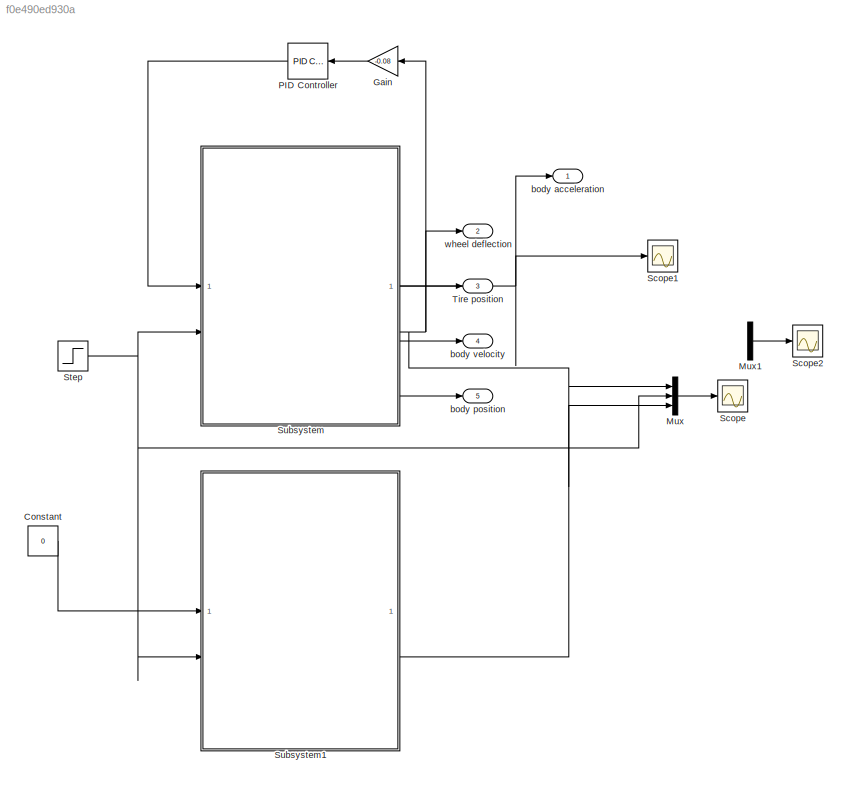
MODEL slx_f0e490ed930a
KIND model
CONFIG AbsTol = auto
CONFIG EnableMultiTasking = off
CONFIG FixedStep = auto
CONFIG MaxStep = auto
CONFIG MinStep = auto
CONFIG RelTol = 1e-3
CONFIG SampleTimeConstraint = Unconstrained
CONFIG SolverName = VariableStepAuto
CONFIG StartTime = 0.0
CONFIG StopTime = 2.5
BLOCK [Constant] Constant
  Value = 0
BLOCK [Gain] Gain
  Gain = -0.08
BLOCK [Mux] Mux
  DisplayOption = bar
  Inputs = 3
BLOCK [Mux] Mux1
  DisplayOption = bar
  Inputs = 2
BLOCK [Reference] PID Controller  REF=slpidlib/PID Controller
  LibrarySourceBlock = simulink/Continuous/PID Controller
  SourceBlock = slpidlib/PID Controller
  SourceType = PID 1dof
BLOCK [Scope] Scope
  Floating = off
  NumInputPorts = 1
  ScopeSpecificationString = Simulink.scopes.TimeScopeBlockCfg('CurrentConfiguration', extmgr.ConfigurationSet(extmgr.Configuration('Core','General UI',true,'FigureColor',[0.972549019607843 0.972549019607843 0.972549019607843]),extmgr.Configuration('Core','Source UI',true),extmgr.Configuration('Sources','WiredSimulink',true,'DataLoggingVariableName','ScopeData6'),extmgr.Configuration('Visuals','Time Domain',true,'SerializedDi...<+1910ch>
BLOCK [Scope] Scope1
  Floating = off
  NumInputPorts = 1
  ScopeSpecificationString = Simulink.scopes.TimeScopeBlockCfg('CurrentConfiguration', extmgr.ConfigurationSet(extmgr.Configuration('Core','General UI',true),extmgr.Configuration('Core','Source UI',true),extmgr.Configuration('Sources','WiredSimulink',true,'DataLoggingVariableName','ScopeData7'),extmgr.Configuration('Visuals','Time Domain',true,'SerializedDisplays',{struct('MinYLimReal','-13.08663','MaxYLimReal','7.59611','YLa...<+1438ch>
BLOCK [Scope] Scope2
  Floating = off
  NumInputPorts = 1
  ScopeSpecificationString = Simulink.scopes.TimeScopeBlockCfg('CurrentConfiguration', extmgr.ConfigurationSet(extmgr.Configuration('Core','General UI',true,'FigureColor',[0.972549019607843 0.972549019607843 0.972549019607843]),extmgr.Configuration('Core','Source UI',true),extmgr.Configuration('Sources','WiredSimulink',true,'DataLoggingVariableName','ScopeData1'),extmgr.Configuration('Visuals','Time Domain',true,'SerializedDi...<+1873ch>
BLOCK [Step] Step
  SampleTime = 0
  Time = 0
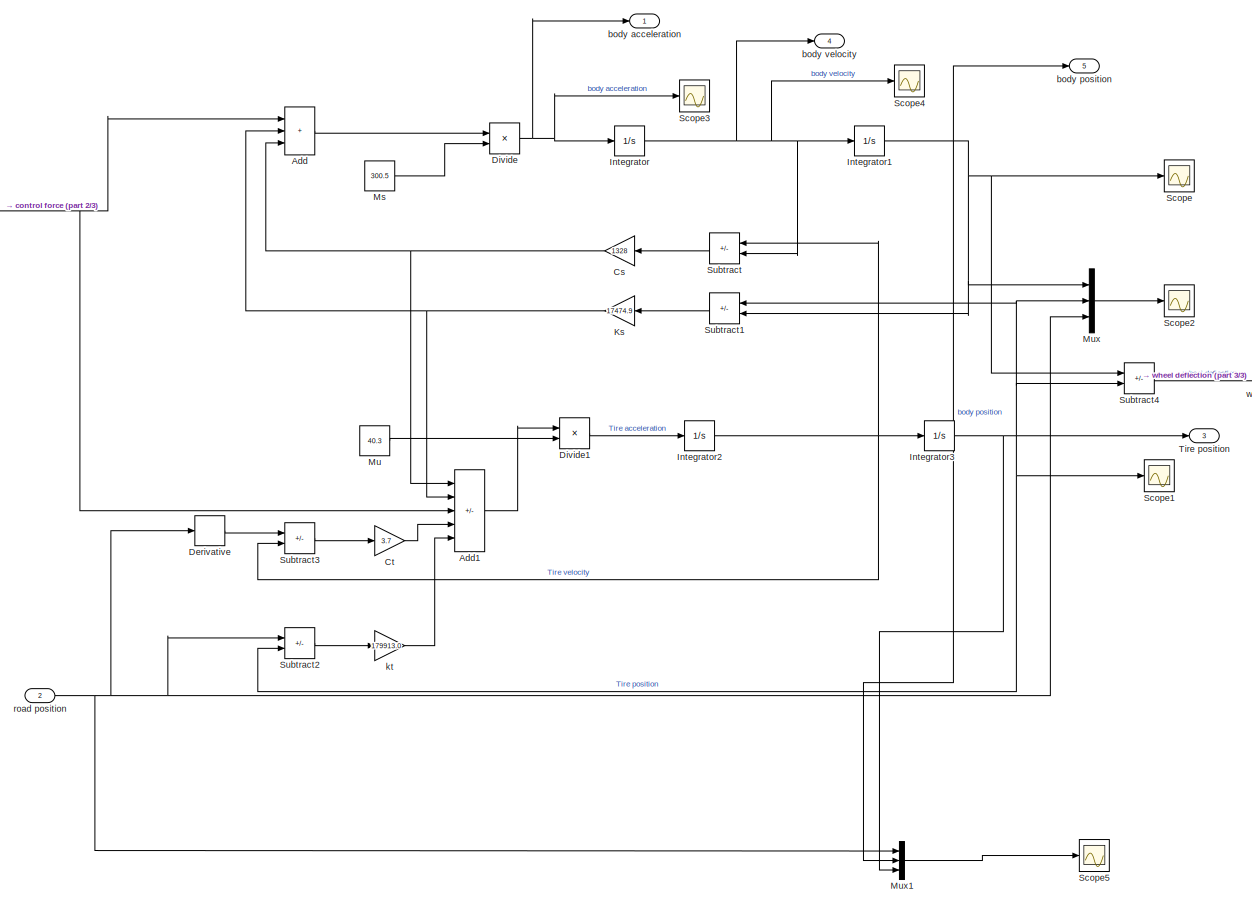
[diagram: Subsystem - part 1/3, most of the canvas]
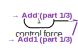
[diagram: Subsystem - part 2/3, top left region]
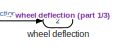
[diagram: Subsystem - part 3/3, middle right region]
BLOCK [SubSystem] Subsystem
BLOCK [Sum] Subsystem/Add
  IconShape = rectangular
  Inputs = +++
BLOCK [Sum] Subsystem/Add1
  IconShape = rectangular
  Inputs = ---++
BLOCK [Gain] Subsystem/Cs
  Gain = 1328
BLOCK [Gain] Subsystem/Ct
  Gain = 3.7
BLOCK [Derivative] Subsystem/Derivative
BLOCK [Product] Subsystem/Divide
  Inputs = */
BLOCK [Product] Subsystem/Divide1
  Inputs = */
BLOCK [Integrator] Subsystem/Integrator
BLOCK [Integrator] Subsystem/Integrator1
BLOCK [Integrator] Subsystem/Integrator2
BLOCK [Integrator] Subsystem/Integrator3
BLOCK [Gain] Subsystem/Ks
  Gain = 17474.9
BLOCK [Constant] Subsystem/Ms
  Value = 300.5
BLOCK [Constant] Subsystem/Mu
  Value = 40.3
BLOCK [Mux] Subsystem/Mux
  DisplayOption = bar
  Inputs = 3
BLOCK [Mux] Subsystem/Mux1
  DisplayOption = bar
  Inputs = 3
BLOCK [Scope] Subsystem/Scope
  Floating = off
  NumInputPorts = 1
  ScopeSpecificationString = Simulink.scopes.TimeScopeBlockCfg('CurrentConfiguration', extmgr.ConfigurationSet(extmgr.Configuration('Core','General UI',true),extmgr.Configuration('Core','Source UI',true),extmgr.Configuration('Sources','WiredSimulink',true,'DataLoggingVariableName','ScopeData1'),extmgr.Configuration('Visuals','Time Domain',true,'SerializedDisplays',{struct('MinYLimReal','-0.38691','MaxYLimReal','0.88758','YLab...<+1400ch>
BLOCK [Scope] Subsystem/Scope1
  Floating = off
  NumInputPorts = 1
  ScopeSpecificationString = Simulink.scopes.TimeScopeBlockCfg('CurrentConfiguration', extmgr.ConfigurationSet(extmgr.Configuration('Core','General UI',true),extmgr.Configuration('Core','Source UI',true),extmgr.Configuration('Sources','WiredSimulink',true,'DataLoggingVariableName','ScopeData3'),extmgr.Configuration('Visuals','Time Domain',true,'SerializedDisplays',{struct('MinYLimReal','-0.30092','MaxYLimReal','0.79947','YLab...<+1403ch>
BLOCK [Scope] Subsystem/Scope2
  Floating = off
  NumInputPorts = 1
  ScopeSpecificationString = Simulink.scopes.TimeScopeBlockCfg('CurrentConfiguration', extmgr.ConfigurationSet(extmgr.Configuration('Core','General UI',true),extmgr.Configuration('Core','Source UI',true),extmgr.Configuration('Sources','WiredSimulink',true,'DataLoggingVariableName','ScopeData4'),extmgr.Configuration('Visuals','Time Domain',true,'SerializedDisplays',{struct('MinYLimReal','-0.38691','MaxYLimReal','0.88758','YLab...<+1431ch>
BLOCK [Scope] Subsystem/Scope3
  Floating = off
  NumInputPorts = 1
  ScopeSpecificationString = Simulink.scopes.TimeScopeBlockCfg('CurrentConfiguration', extmgr.ConfigurationSet(extmgr.Configuration('Core','General UI',true),extmgr.Configuration('Core','Source UI',true),extmgr.Configuration('Sources','WiredSimulink',true,'DataLoggingVariableName','ScopeData5'),extmgr.Configuration('Visuals','Time Domain',true,'SerializedDisplays',{struct('MinYLimReal','-0.46043','MaxYLimReal','0.85505','YLab...<+1404ch>
BLOCK [Scope] Subsystem/Scope4
  Floating = off
  NumInputPorts = 1
  ScopeSpecificationString = Simulink.scopes.TimeScopeBlockCfg('CurrentConfiguration', extmgr.ConfigurationSet(extmgr.Configuration('Core','General UI',true),extmgr.Configuration('Core','Source UI',true),extmgr.Configuration('Sources','WiredSimulink',true),extmgr.Configuration('Visuals','Time Domain',true,'SerializedDisplays',{struct('MinYLimReal','-4.51671','MaxYLimReal','4.49767','YLabelReal','','MinYLimMag','0.00000','MaxY...<+1361ch>
BLOCK [Scope] Subsystem/Scope5
  Floating = off
  NumInputPorts = 1
  ScopeSpecificationString = Simulink.scopes.TimeScopeBlockCfg('CurrentConfiguration', extmgr.ConfigurationSet(extmgr.Configuration('Core','General UI',true,'FigureColor',[0.941176470588235 0.941176470588235 0.941176470588235]),extmgr.Configuration('Core','Source UI',true),extmgr.Configuration('Sources','WiredSimulink',true,'DataLoggingVariableName','ScopeData2'),extmgr.Configuration('Visuals','Time Domain',true,'SerializedDi...<+1904ch>
BLOCK [Sum] Subsystem/Subtract
  IconShape = rectangular
  Inputs = +-
BLOCK [Sum] Subsystem/Subtract1
  IconShape = rectangular
  Inputs = +-
BLOCK [Sum] Subsystem/Subtract2
  IconShape = rectangular
  Inputs = +-
BLOCK [Sum] Subsystem/Subtract3
  IconShape = rectangular
  Inputs = +-
BLOCK [Sum] Subsystem/Subtract4
  IconShape = rectangular
  Inputs = +-
BLOCK [Outport] Subsystem/Tire position
  Port = 3
BLOCK [Outport] Subsystem/body acceleration
BLOCK [Outport] Subsystem/body position
  Port = 5
BLOCK [Outport] Subsystem/body velocity
  Port = 4
BLOCK [Inport] Subsystem/control force
BLOCK [Gain] Subsystem/kt
  Gain = 179913.0
BLOCK [Inport] Subsystem/road position
  Port = 2
BLOCK [Outport] Subsystem/wheel deflection
  Port = 2
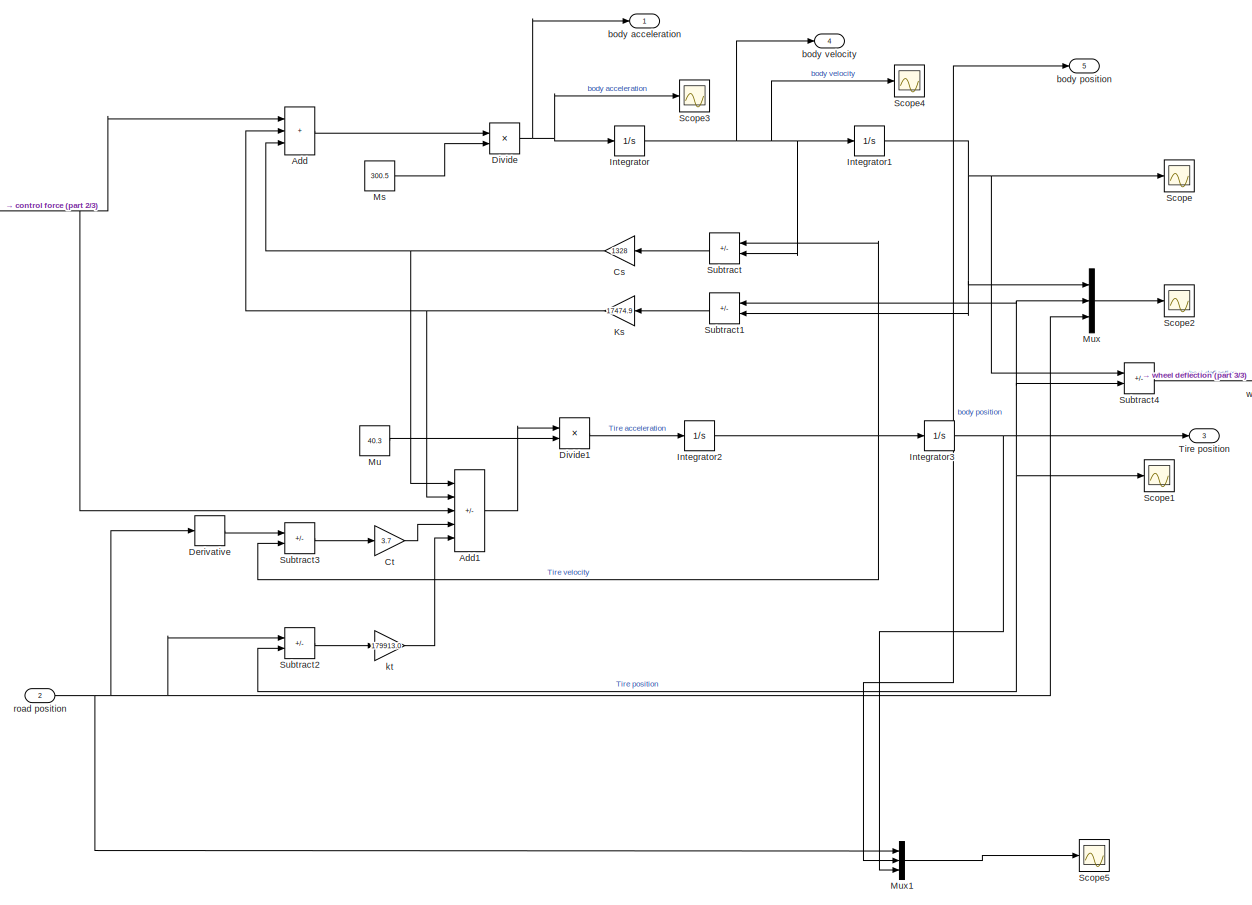
[diagram: Subsystem1 - part 1/3, most of the canvas]
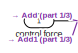
[diagram: Subsystem1 - part 2/3, top left region]
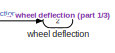
[diagram: Subsystem1 - part 3/3, middle right region]
BLOCK [SubSystem] Subsystem1
BLOCK [Sum] Subsystem1/Add
  IconShape = rectangular
  Inputs = +++
BLOCK [Sum] Subsystem1/Add1
  IconShape = rectangular
  Inputs = ---++
BLOCK [Gain] Subsystem1/Cs
  Gain = 1328
BLOCK [Gain] Subsystem1/Ct
  Gain = 3.7
BLOCK [Derivative] Subsystem1/Derivative
BLOCK [Product] Subsystem1/Divide
  Inputs = */
BLOCK [Product] Subsystem1/Divide1
  Inputs = */
BLOCK [Integrator] Subsystem1/Integrator
BLOCK [Integrator] Subsystem1/Integrator1
BLOCK [Integrator] Subsystem1/Integrator2
BLOCK [Integrator] Subsystem1/Integrator3
BLOCK [Gain] Subsystem1/Ks
  Gain = 17474.9
BLOCK [Constant] Subsystem1/Ms
  Value = 300.5
BLOCK [Constant] Subsystem1/Mu
  Value = 40.3
BLOCK [Mux] Subsystem1/Mux
  DisplayOption = bar
  Inputs = 3
BLOCK [Mux] Subsystem1/Mux1
  DisplayOption = bar
  Inputs = 3
BLOCK [Scope] Subsystem1/Scope
  Floating = off
  NumInputPorts = 1
  ScopeSpecificationString = Simulink.scopes.TimeScopeBlockCfg('CurrentConfiguration', extmgr.ConfigurationSet(extmgr.Configuration('Core','General UI',true),extmgr.Configuration('Core','Source UI',true),extmgr.Configuration('Sources','WiredSimulink',true,'DataLoggingVariableName','ScopeData1'),extmgr.Configuration('Visuals','Time Domain',true,'SerializedDisplays',{struct('MinYLimReal','-0.38691','MaxYLimReal','0.88758','YLab...<+1400ch>
BLOCK [Scope] Subsystem1/Scope1
  Floating = off
  NumInputPorts = 1
  ScopeSpecificationString = Simulink.scopes.TimeScopeBlockCfg('CurrentConfiguration', extmgr.ConfigurationSet(extmgr.Configuration('Core','General UI',true),extmgr.Configuration('Core','Source UI',true),extmgr.Configuration('Sources','WiredSimulink',true,'DataLoggingVariableName','ScopeData3'),extmgr.Configuration('Visuals','Time Domain',true,'SerializedDisplays',{struct('MinYLimReal','-0.30092','MaxYLimReal','0.79947','YLab...<+1403ch>
BLOCK [Scope] Subsystem1/Scope2
  Floating = off
  NumInputPorts = 1
  ScopeSpecificationString = Simulink.scopes.TimeScopeBlockCfg('CurrentConfiguration', extmgr.ConfigurationSet(extmgr.Configuration('Core','General UI',true),extmgr.Configuration('Core','Source UI',true),extmgr.Configuration('Sources','WiredSimulink',true,'DataLoggingVariableName','ScopeData4'),extmgr.Configuration('Visuals','Time Domain',true,'SerializedDisplays',{struct('MinYLimReal','-0.38691','MaxYLimReal','0.88758','YLab...<+1431ch>
BLOCK [Scope] Subsystem1/Scope3
  Floating = off
  NumInputPorts = 1
  ScopeSpecificationString = Simulink.scopes.TimeScopeBlockCfg('CurrentConfiguration', extmgr.ConfigurationSet(extmgr.Configuration('Core','General UI',true),extmgr.Configuration('Core','Source UI',true),extmgr.Configuration('Sources','WiredSimulink',true,'DataLoggingVariableName','ScopeData5'),extmgr.Configuration('Visuals','Time Domain',true,'SerializedDisplays',{struct('MinYLimReal','-0.46043','MaxYLimReal','0.85505','YLab...<+1404ch>
BLOCK [Scope] Subsystem1/Scope4
  Floating = off
  NumInputPorts = 1
  ScopeSpecificationString = Simulink.scopes.TimeScopeBlockCfg('CurrentConfiguration', extmgr.ConfigurationSet(extmgr.Configuration('Core','General UI',true),extmgr.Configuration('Core','Source UI',true),extmgr.Configuration('Sources','WiredSimulink',true),extmgr.Configuration('Visuals','Time Domain',true,'SerializedDisplays',{struct('MinYLimReal','-4.51671','MaxYLimReal','4.49767','YLabelReal','','MinYLimMag','0.00000','MaxY...<+1361ch>
BLOCK [Scope] Subsystem1/Scope5
  Floating = off
  NumInputPorts = 1
  ScopeSpecificationString = Simulink.scopes.TimeScopeBlockCfg('CurrentConfiguration', extmgr.ConfigurationSet(extmgr.Configuration('Core','General UI',true,'FigureColor',[0.941176470588235 0.941176470588235 0.941176470588235]),extmgr.Configuration('Core','Source UI',true),extmgr.Configuration('Sources','WiredSimulink',true,'DataLoggingVariableName','ScopeData2'),extmgr.Configuration('Visuals','Time Domain',true,'SerializedDi...<+1904ch>
BLOCK [Sum] Subsystem1/Subtract
  IconShape = rectangular
  Inputs = +-
BLOCK [Sum] Subsystem1/Subtract1
  IconShape = rectangular
  Inputs = +-
BLOCK [Sum] Subsystem1/Subtract2
  IconShape = rectangular
  Inputs = +-
BLOCK [Sum] Subsystem1/Subtract3
  IconShape = rectangular
  Inputs = +-
BLOCK [Sum] Subsystem1/Subtract4
  IconShape = rectangular
  Inputs = +-
BLOCK [Outport] Subsystem1/Tire position
  Port = 3
BLOCK [Outport] Subsystem1/body acceleration
BLOCK [Outport] Subsystem1/body position
  Port = 5
BLOCK [Outport] Subsystem1/body velocity
  Port = 4
BLOCK [Inport] Subsystem1/control force
BLOCK [Gain] Subsystem1/kt
  Gain = 179913.0
BLOCK [Inport] Subsystem1/road position
  Port = 2
BLOCK [Outport] Subsystem1/wheel deflection
  Port = 2
BLOCK [Outport] Tire position
  Port = 3
BLOCK [Outport] body acceleration
BLOCK [Outport] body position
  Port = 5
BLOCK [Outport] body velocity
  Port = 4
BLOCK [Outport] wheel deflection
  Port = 2
LINE Constant:1 -> Subsystem1:1
LINE Gain:1 -> PID Controller:1
LINE Mux1:1 -> Scope2:1
LINE Mux:1 -> Scope:1
LINE PID Controller:1 -> Subsystem:1
NET Step:1 -> Mux:2, Subsystem1:2, Subsystem:2
LINE Subsystem/Add1:1 -> Subsystem/Divide1:1
LINE Subsystem/Add:1 -> Subsystem/Divide:1
NET Subsystem/Cs:1 -> Subsystem/Add1:1, Subsystem/Add:3
LINE Subsystem/Ct:1 -> Subsystem/Add1:4
LINE Subsystem/Derivative:1 -> Subsystem/Subtract3:1
LINE Subsystem/Divide1:1 -> Subsystem/Integrator2:1
NET Subsystem/Divide:1 -> Subsystem/Integrator:1, Subsystem/Scope3:1, Subsystem/body acceleration:1
NET Subsystem/Integrator1:1 -> Subsystem/Mux1:2, Subsystem/Mux:1, Subsystem/Scope:1, Subsystem/Subtract1:2, Subsystem/Subtract4:1, Subsystem/body position:1
NET Subsystem/Integrator2:1 -> Subsystem/Integrator3:1, Subsystem/Subtract3:2, Subsystem/Subtract:1
NET Subsystem/Integrator3:1 -> Subsystem/Mux1:3, Subsystem/Mux:2, Subsystem/Scope1:1, Subsystem/Subtract1:1, Subsystem/Subtract2:2, Subsystem/Subtract4:2, Subsystem/Tire position:1
NET Subsystem/Integrator:1 -> Subsystem/Integrator1:1, Subsystem/Scope4:1, Subsystem/Subtract:2, Subsystem/body velocity:1
NET Subsystem/Ks:1 -> Subsystem/Add1:2, Subsystem/Add:2
LINE Subsystem/Ms:1 -> Subsystem/Divide:2
LINE Subsystem/Mu:1 -> Subsystem/Divide1:2
LINE Subsystem/Mux1:1 -> Subsystem/Scope5:1
LINE Subsystem/Mux:1 -> Subsystem/Scope2:1
LINE Subsystem/Subtract1:1 -> Subsystem/Ks:1
LINE Subsystem/Subtract2:1 -> Subsystem/kt:1
LINE Subsystem/Subtract3:1 -> Subsystem/Ct:1
LINE Subsystem/Subtract4:1 -> Subsystem/wheel deflection:1
LINE Subsystem/Subtract:1 -> Subsystem/Cs:1
NET Subsystem/control force:1 -> Subsystem/Add1:3, Subsystem/Add:1
LINE Subsystem/kt:1 -> Subsystem/Add1:5
NET Subsystem/road position:1 -> Subsystem/Derivative:1, Subsystem/Mux1:1, Subsystem/Mux:3, Subsystem/Subtract2:1
LINE Subsystem1/Add1:1 -> Subsystem1/Divide1:1
LINE Subsystem1/Add:1 -> Subsystem1/Divide:1
NET Subsystem1/Cs:1 -> Subsystem1/Add1:1, Subsystem1/Add:3
LINE Subsystem1/Ct:1 -> Subsystem1/Add1:4
LINE Subsystem1/Derivative:1 -> Subsystem1/Subtract3:1
LINE Subsystem1/Divide1:1 -> Subsystem1/Integrator2:1
NET Subsystem1/Divide:1 -> Subsystem1/Integrator:1, Subsystem1/Scope3:1, Subsystem1/body acceleration:1
NET Subsystem1/Integrator1:1 -> Subsystem1/Mux1:2, Subsystem1/Mux:1, Subsystem1/Scope:1, Subsystem1/Subtract1:2, Subsystem1/Subtract4:1, Subsystem1/body position:1
NET Subsystem1/Integrator2:1 -> Subsystem1/Integrator3:1, Subsystem1/Subtract3:2, Subsystem1/Subtract:1
NET Subsystem1/Integrator3:1 -> Subsystem1/Mux1:3, Subsystem1/Mux:2, Subsystem1/Scope1:1, Subsystem1/Subtract1:1, Subsystem1/Subtract2:2, Subsystem1/Subtract4:2, Subsystem1/Tire position:1
NET Subsystem1/Integrator:1 -> Subsystem1/Integrator1:1, Subsystem1/Scope4:1, Subsystem1/Subtract:2, Subsystem1/body velocity:1
NET Subsystem1/Ks:1 -> Subsystem1/Add1:2, Subsystem1/Add:2
LINE Subsystem1/Ms:1 -> Subsystem1/Divide:2
LINE Subsystem1/Mu:1 -> Subsystem1/Divide1:2
LINE Subsystem1/Mux1:1 -> Subsystem1/Scope5:1
LINE Subsystem1/Mux:1 -> Subsystem1/Scope2:1
LINE Subsystem1/Subtract1:1 -> Subsystem1/Ks:1
LINE Subsystem1/Subtract2:1 -> Subsystem1/kt:1
LINE Subsystem1/Subtract3:1 -> Subsystem1/Ct:1
LINE Subsystem1/Subtract4:1 -> Subsystem1/wheel deflection:1
LINE Subsystem1/Subtract:1 -> Subsystem1/Cs:1
NET Subsystem1/control force:1 -> Subsystem1/Add1:3, Subsystem1/Add:1
LINE Subsystem1/kt:1 -> Subsystem1/Add1:5
NET Subsystem1/road position:1 -> Subsystem1/Derivative:1, Subsystem1/Mux1:1, Subsystem1/Mux:3, Subsystem1/Subtract2:1
LINE Subsystem1:2 -> Mux:3
NET Subsystem:1 -> Scope1:1, body acceleration:1
NET Subsystem:2 -> Gain:1, Mux:1, wheel deflection:1
LINE Subsystem:3 -> Tire position:1
LINE Subsystem:4 -> body velocity:1
LINE Subsystem:5 -> body position:1
note: NET lines group one-source signal fan-out (src -> all destinations, sorted); 1:1 wires keep LINE
